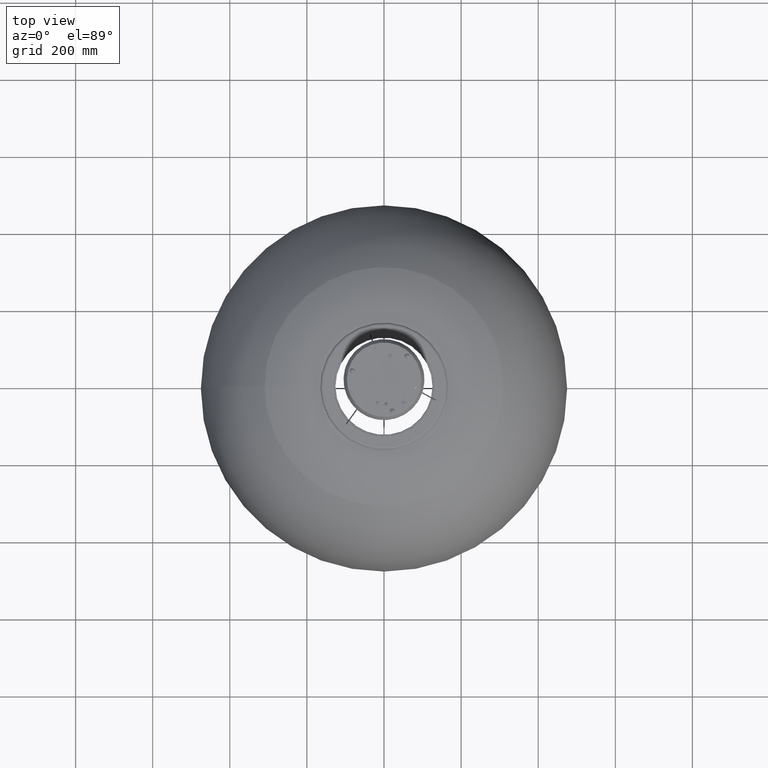
[diagram: clean part render]
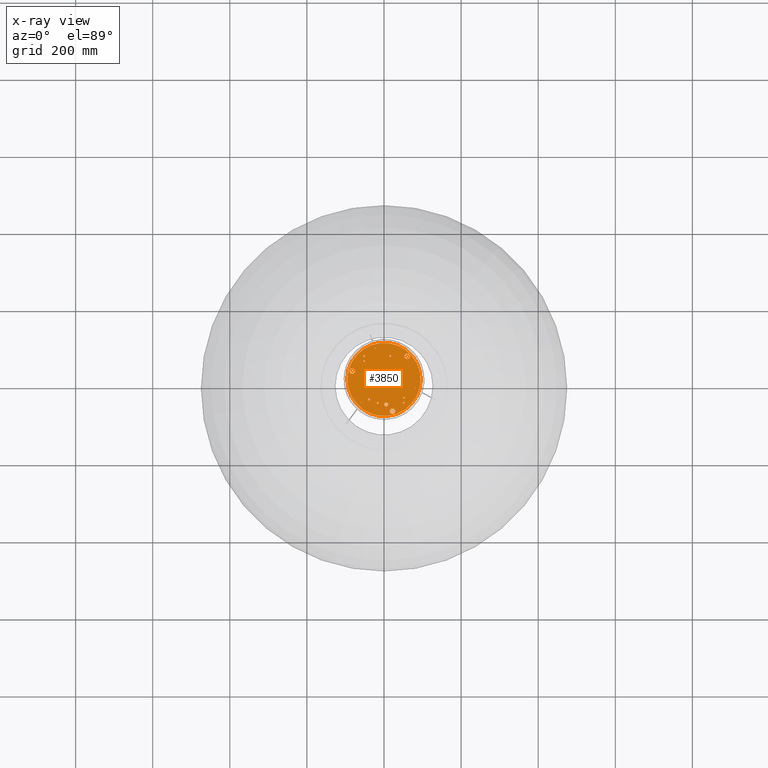
[diagram: x-ray — body ghosted, one internal face saturated and labeled with its STEP entity id]
A machine part, top view, then the same camera in x-ray: the body is ghosted and one INTERNAL B-rep face — a face not visible from any outside direction — is saturated and labeled: STEP entity #3850.
In plain terms, the highlighted planar face has unit normal (0, 0, 1).
Its self-contained STEP definition (entity closure, byte-faithful):
#1008=ORIENTED_EDGE('',*,*,#1862,.F.);
#1009=ORIENTED_EDGE('',*,*,#1863,.F.);
#1010=ORIENTED_EDGE('',*,*,#1864,.F.);
#1011=ORIENTED_EDGE('',*,*,#1865,.F.);
#1012=ORIENTED_EDGE('',*,*,#1866,.F.);
#1013=ORIENTED_EDGE('',*,*,#1867,.F.);
#1014=ORIENTED_EDGE('',*,*,#1868,.F.);
#1015=ORIENTED_EDGE('',*,*,#1869,.F.);
#1016=ORIENTED_EDGE('',*,*,#1847,.F.);
#1017=ORIENTED_EDGE('',*,*,#1849,.F.);
#1018=ORIENTED_EDGE('',*,*,#1870,.F.);
#1019=ORIENTED_EDGE('',*,*,#1855,.T.);
#1020=ORIENTED_EDGE('',*,*,#1861,.T.);
#1021=ORIENTED_EDGE('',*,*,#1871,.T.);
#1022=ORIENTED_EDGE('',*,*,#1872,.T.);
#1847=EDGE_CURVE('',#2318,#2318,#2656,.T.);
#1849=EDGE_CURVE('',#2320,#2320,#2658,.T.);
#1855=EDGE_CURVE('',#2326,#2326,#2664,.T.);
#1861=EDGE_CURVE('',#2332,#2332,#2670,.T.);
#1862=EDGE_CURVE('',#2333,#2333,#2671,.T.);
#1863=EDGE_CURVE('',#2334,#2334,#2672,.T.);
#1864=EDGE_CURVE('',#2335,#2335,#2673,.T.);
#1865=EDGE_CURVE('',#2336,#2336,#2674,.T.);
#1866=EDGE_CURVE('',#2337,#2337,#2675,.T.);
#1867=EDGE_CURVE('',#2338,#2338,#2676,.F.);
#1868=EDGE_CURVE('',#2339,#2339,#2677,.T.);
#1869=EDGE_CURVE('',#2340,#2340,#2678,.T.);
#1870=EDGE_CURVE('',#2341,#2341,#2679,.T.);
#1871=EDGE_CURVE('',#2342,#2342,#2680,.T.);
#1872=EDGE_CURVE('',#2343,#2343,#2681,.T.);
#2318=VERTEX_POINT('',#6915);
#2320=VERTEX_POINT('',#6920);
#2326=VERTEX_POINT('',#6936);
#2332=VERTEX_POINT('',#6953);
#2333=VERTEX_POINT('',#6957);
#2334=VERTEX_POINT('',#6959);
#2335=VERTEX_POINT('',#6961);
#2336=VERTEX_POINT('',#6963);
#2337=VERTEX_POINT('',#6965);
#2338=VERTEX_POINT('',#6967);
#2339=VERTEX_POINT('',#6969);
#2340=VERTEX_POINT('',#6971);
#2341=VERTEX_POINT('',#6973);
#2342=VERTEX_POINT('',#6975);
#2343=VERTEX_POINT('',#6977);
#2656=CIRCLE('',#5041,1.);
#2658=CIRCLE('',#5044,1.);
#2664=CIRCLE('',#5054,7.12132034355874);
#2670=CIRCLE('',#5065,7.12132034355874);
#2671=CIRCLE('',#5068,2.25);
#2672=CIRCLE('',#5069,2.25);
#2673=CIRCLE('',#5070,2.);
#2674=CIRCLE('',#5071,2.);
#2675=CIRCLE('',#5072,2.25);
#2676=CIRCLE('',#5073,5.125);
#2677=CIRCLE('',#5074,2.);
#2678=CIRCLE('',#5075,2.);
#2679=CIRCLE('',#5076,1.);
#2680=CIRCLE('',#5077,7.12132034355874);
#2681=CIRCLE('',#5078,95.);
#2934=EDGE_LOOP('',(#1008));
#2935=EDGE_LOOP('',(#1009));
#2936=EDGE_LOOP('',(#1010));
#2937=EDGE_LOOP('',(#1011));
#2938=EDGE_LOOP('',(#1012));
#2939=EDGE_LOOP('',(#1013));
#2940=EDGE_LOOP('',(#1014));
#2941=EDGE_LOOP('',(#1015));
#2942=EDGE_LOOP('',(#1016));
#2943=EDGE_LOOP('',(#1017));
#2944=EDGE_LOOP('',(#1018));
#2945=EDGE_LOOP('',(#1019));
#2946=EDGE_LOOP('',(#1020));
#2947=EDGE_LOOP('',(#1021));
#2948=EDGE_LOOP('',(#1022));
#3355=FACE_BOUND('',#2934,.T.);
#3356=FACE_BOUND('',#2935,.T.);
#3357=FACE_BOUND('',#2936,.T.);
#3358=FACE_BOUND('',#2937,.T.);
#3359=FACE_BOUND('',#2938,.T.);
#3360=FACE_BOUND('',#2939,.T.);
#3361=FACE_BOUND('',#2940,.T.);
#3362=FACE_BOUND('',#2941,.T.);
#3363=FACE_BOUND('',#2942,.T.);
#3364=FACE_BOUND('',#2943,.T.);
#3365=FACE_BOUND('',#2944,.T.);
#3366=FACE_BOUND('',#2945,.T.);
#3367=FACE_BOUND('',#2946,.T.);
#3368=FACE_BOUND('',#2947,.T.);
#3369=FACE_BOUND('',#2948,.T.);
#3643=PLANE('',#5067);
#3850=ADVANCED_FACE('',(#3355,#3356,#3357,#3358,#3359,#3360,#3361,#3362,
#3363,#3364,#3365,#3366,#3367,#3368,#3369),#3643,.F.);
#5041=AXIS2_PLACEMENT_3D('',#6914,#5733,#5734);
#5044=AXIS2_PLACEMENT_3D('',#6919,#5739,#5740);
#5054=AXIS2_PLACEMENT_3D('',#6935,#5759,#5760);
#5065=AXIS2_PLACEMENT_3D('',#6952,#5781,#5782);
#5067=AXIS2_PLACEMENT_3D('',#6955,#5785,#5786);
#5068=AXIS2_PLACEMENT_3D('',#6956,#5787,#5788);
#5069=AXIS2_PLACEMENT_3D('',#6958,#5789,#5790);
#5070=AXIS2_PLACEMENT_3D('',#6960,#5791,#5792);
#5071=AXIS2_PLACEMENT_3D('',#6962,#5793,#5794);
#5072=AXIS2_PLACEMENT_3D('',#6964,#5795,#5796);
#5073=AXIS2_PLACEMENT_3D('',#6966,#5797,#5798);
#5074=AXIS2_PLACEMENT_3D('',#6968,#5799,#5800);
#5075=AXIS2_PLACEMENT_3D('',#6970,#5801,#5802);
#5076=AXIS2_PLACEMENT_3D('',#6972,#5803,#5804);
#5077=AXIS2_PLACEMENT_3D('',#6974,#5805,#5806);
#5078=AXIS2_PLACEMENT_3D('',#6976,#5807,#5808);
#5733=DIRECTION('',(0.,0.,-1.));
#5734=DIRECTION('',(0.500000000000001,0.866025403784438,0.));
#5739=DIRECTION('',(0.,0.,-1.));
#5740=DIRECTION('',(0.5,-0.866025403784439,0.));
#5759=DIRECTION('',(0.,0.,1.));
#5760=DIRECTION('',(-0.500000000000001,-0.866025403784438,0.));
#5781=DIRECTION('',(0.,0.,1.));
#5782=DIRECTION('',(-0.5,0.866025403784439,0.));
#5785=DIRECTION('',(0.,0.,1.));
#5786=DIRECTION('',(1.,0.,0.));
#5787=DIRECTION('',(0.,0.,-1.));
#5788=DIRECTION('',(-1.,0.,0.));
#5789=DIRECTION('',(0.,0.,-1.));
#5790=DIRECTION('',(-1.,0.,0.));
#5791=DIRECTION('',(0.,0.,-1.));
#5792=DIRECTION('',(0.,1.,0.));
#5793=DIRECTION('',(0.,0.,-1.));
#5794=DIRECTION('',(0.,1.,0.));
#5795=DIRECTION('',(0.,0.,-1.));
#5796=DIRECTION('',(1.,0.,0.));
#5797=DIRECTION('',(0.,0.,1.));
#5798=DIRECTION('',(1.,0.,0.));
#5799=DIRECTION('',(0.,0.,-1.));
#5800=DIRECTION('',(0.,-1.,0.));
#5801=DIRECTION('',(0.,0.,-1.));
#5802=DIRECTION('',(0.,-1.,0.));
#5803=DIRECTION('',(0.,0.,-1.));
#5804=DIRECTION('',(-1.,0.,0.));
#5805=DIRECTION('',(0.,0.,1.));
#5806=DIRECTION('',(1.,0.,0.));
#5807=DIRECTION('',(0.,0.,-1.));
#5808=DIRECTION('',(-1.,0.,0.));
#6914=CARTESIAN_POINT('',(-42.5000000000001,-73.6121593216773,25.5));
#6915=CARTESIAN_POINT('',(-42.0000000000001,-72.7461339178928,25.5));
#6919=CARTESIAN_POINT('',(-42.5,73.6121593216773,25.5));
#6920=CARTESIAN_POINT('',(-42.,72.7461339178929,25.5));
#6935=CARTESIAN_POINT('',(42.5,73.6121593216773,25.5000000000009));
#6936=CARTESIAN_POINT('',(38.9393398282207,67.4449149956685,25.5000000000009));
#6952=CARTESIAN_POINT('',(42.5,-73.6121593216773,25.5000000000009));
#6953=CARTESIAN_POINT('',(38.9393398282206,-67.4449149956685,25.5000000000009));
#6955=CARTESIAN_POINT('',(-1.1295193828023E-16,0.,25.5000000000009));
#6956=CARTESIAN_POINT('',(-1.56142284887325E-14,-63.,25.5000000000009));
#6957=CARTESIAN_POINT('',(-2.25000000000002,-63.,25.5000000000009));
#6958=CARTESIAN_POINT('',(7.53134120960511E-15,63.,25.5000000000009));
#6959=CARTESIAN_POINT('',(-2.24999999999999,63.,25.5000000000009));
#6960=CARTESIAN_POINT('',(-62.25,32.25,25.5));
#6961=CARTESIAN_POINT('',(-62.25,34.25,25.5));
#6962=CARTESIAN_POINT('',(62.25,-32.25,25.5));
#6963=CARTESIAN_POINT('',(62.25,-30.25,25.5));
#6964=CARTESIAN_POINT('',(-24.,-60.,25.5));
#6965=CARTESIAN_POINT('',(-21.75,-60.,25.5));
#6966=CARTESIAN_POINT('',(22.2313093161684,-61.0800203510841,25.5000000000009));
#6967=CARTESIAN_POINT('',(27.3563093161684,-61.0800203510841,25.5000000000009));
#6968=CARTESIAN_POINT('',(65.25,-45.25,25.5));
#6969=CARTESIAN_POINT('',(65.25,-47.25,25.5));
#6970=CARTESIAN_POINT('',(-65.25,45.25,25.5));
#6971=CARTESIAN_POINT('',(-65.25,43.25,25.5));
#6972=CARTESIAN_POINT('',(85.,-1.87860823480796E-14,25.5));
#6973=CARTESIAN_POINT('',(84.,-1.87860823480796E-14,25.5));
#6974=CARTESIAN_POINT('',(-85.,0.,25.5000000000009));
#6975=CARTESIAN_POINT('',(-77.8786796564413,0.,25.5000000000009));
#6976=CARTESIAN_POINT('',(0.,0.,25.5000000000019));
#6977=CARTESIAN_POINT('',(-95.,0.,25.5000000000019));